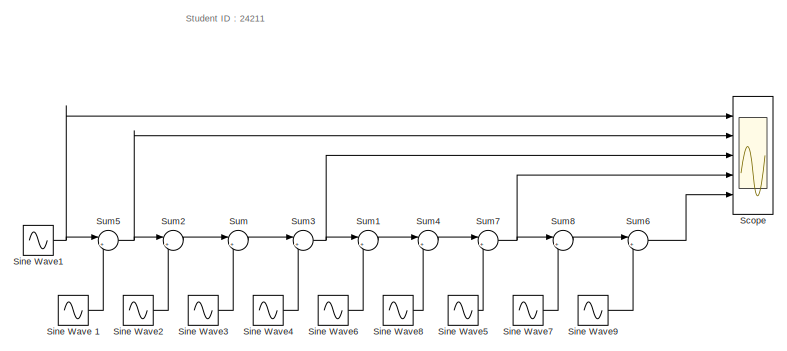
[diagram: root canvas - part 1/2, right side, full height]
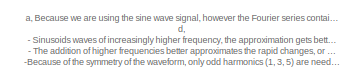
[diagram: root canvas - part 2/2, bottom left region]
MODEL slx_7bdcb77a07d8
KIND model
CONFIG AbsTol = auto
CONFIG EnableMultiTasking = off
CONFIG FixedStep = auto
CONFIG MaxStep = auto
CONFIG MinStep = auto
CONFIG RelTol = 1e-3
CONFIG SampleTimeConstraint = Unconstrained
CONFIG Solver = VariableStepAuto
CONFIG SolverName = VariableStepAuto
CONFIG StartTime = 0.0
CONFIG StopTime = 10.0
BLOCK [Scope] Scope
  Floating = off
  NumInputPorts = 5
  Ports = [5]
  ScopeSpecificationString = Simulink.scopes.TimeScopeBlockCfg('CurrentConfiguration', extmgr.ConfigurationSet(extmgr.Configuration('Core','General UI',true),extmgr.Configuration('Core','Source UI',true),extmgr.Configuration('Sources','WiredSimulink',true),extmgr.Configuration('Visuals','Time Domain',true,'SerializedDisplays',{struct('MinYLimReal','-1.59155','MaxYLimReal','1.59155','YLabelReal','','MinYLimMag','0.00000','MaxY...<+1414ch>
BLOCK [Sin] Sine Wave 1
  Amplitude = 4/pi*(-1/3)
  Frequency = 3*(2*pi/11)
  Phase = pi/2
  Ports = [0, 1]
  SampleTime = 0.1
BLOCK [Sin] Sine Wave1
  Amplitude = 4/pi*1
  Frequency = 1*(2*pi/11)
  Phase = pi/2
  Ports = [0, 1]
  SampleTime = 0.1
BLOCK [Sin] Sine Wave2
  Amplitude = 4/pi*(1/5)
  Frequency = 5*(2*pi/11)
  Phase = pi/2
  Ports = [0, 1]
  SampleTime = 0.1
BLOCK [Sin] Sine Wave3
  Amplitude = 4/pi*(-1/7)
  Frequency = 7*(2*pi/11)
  Phase = pi/2
  Ports = [0, 1]
  SampleTime = 0.1
BLOCK [Sin] Sine Wave4
  Amplitude = 4/pi*(1/9)
  Frequency = 9*(2*pi/11)
  Phase = pi/2
  Ports = [0, 1]
  SampleTime = 0.1
BLOCK [Sin] Sine Wave5
  Amplitude = 4/pi*(-1/15)
  Frequency = 15*(2*pi/11)
  Phase = pi/2
  Ports = [0, 1]
  SampleTime = 0.1
BLOCK [Sin] Sine Wave6
  Amplitude = 4/pi*(-1/11)
  Frequency = 11*(2*pi/11)
  Phase = pi/2
  Ports = [0, 1]
  SampleTime = 0.1
BLOCK [Sin] Sine Wave7
  Amplitude = 4/pi*(1/17)
  Frequency = 17*(2*pi/11)
  Phase = pi/2
  Ports = [0, 1]
  SampleTime = 0.1
BLOCK [Sin] Sine Wave8
  Amplitude = 4/pi*(1/13)
  Frequency = 13*(2*pi/11)
  Phase = pi/2
  Ports = [0, 1]
  SampleTime = 0.1
BLOCK [Sin] Sine Wave9
  Amplitude = 4/pi*(-1/19)
  Frequency = 19*(2*pi/11)
  Phase = pi/2
  Ports = [0, 1]
  SampleTime = 0.1
BLOCK [Sum] Sum
  Inputs = |++
  Ports = [2, 1]
BLOCK [Sum] Sum1
  Inputs = |++
  Ports = [2, 1]
BLOCK [Sum] Sum2
  Inputs = |++
  Ports = [2, 1]
BLOCK [Sum] Sum3
  Inputs = |++
  Ports = [2, 1]
BLOCK [Sum] Sum4
  Inputs = |++
  Ports = [2, 1]
BLOCK [Sum] Sum5
  Inputs = |++
  Ports = [2, 1]
BLOCK [Sum] Sum6
  Inputs = |++
  Ports = [2, 1]
BLOCK [Sum] Sum7
  Inputs = |++
  Ports = [2, 1]
BLOCK [Sum] Sum8
  Inputs = |++
  Ports = [2, 1]
ANNOTATION (root): a, Because we are using the sine wave signal, however the Fourier series contains with the cosine so we have to use the trigonometric formula sin(x+pi/2) = cos x . d, - Sinusoids waves of increasingly higher frequency, the approximation gets better and better. - The addition of higher frequencies better approximates the rapid changes, or details, ( the discontinuity) of the original function ( the...<+125ch>
ANNOTATION (root): Student ID : 24211
LINE Sine Wave 1:1 -> Sum5:2
NET Sine Wave1:1 -> Scope:1, Sum5:1
LINE Sine Wave2:1 -> Sum2:2
LINE Sine Wave3:1 -> Sum:2
LINE Sine Wave4:1 -> Sum3:2
LINE Sine Wave5:1 -> Sum7:2
LINE Sine Wave6:1 -> Sum1:2
LINE Sine Wave7:1 -> Sum8:2
LINE Sine Wave8:1 -> Sum4:2
LINE Sine Wave9:1 -> Sum6:2
LINE Sum1:1 -> Sum4:1
LINE Sum2:1 -> Sum:1
NET Sum3:1 -> Scope:3, Sum1:1
LINE Sum4:1 -> Sum7:1
NET Sum5:1 -> Scope:2, Sum2:1
LINE Sum6:1 -> Scope:5
NET Sum7:1 -> Scope:4, Sum8:1
LINE Sum8:1 -> Sum6:1
LINE Sum:1 -> Sum3:1
note: NET lines group one-source signal fan-out (src -> all destinations, sorted); 1:1 wires keep LINE
